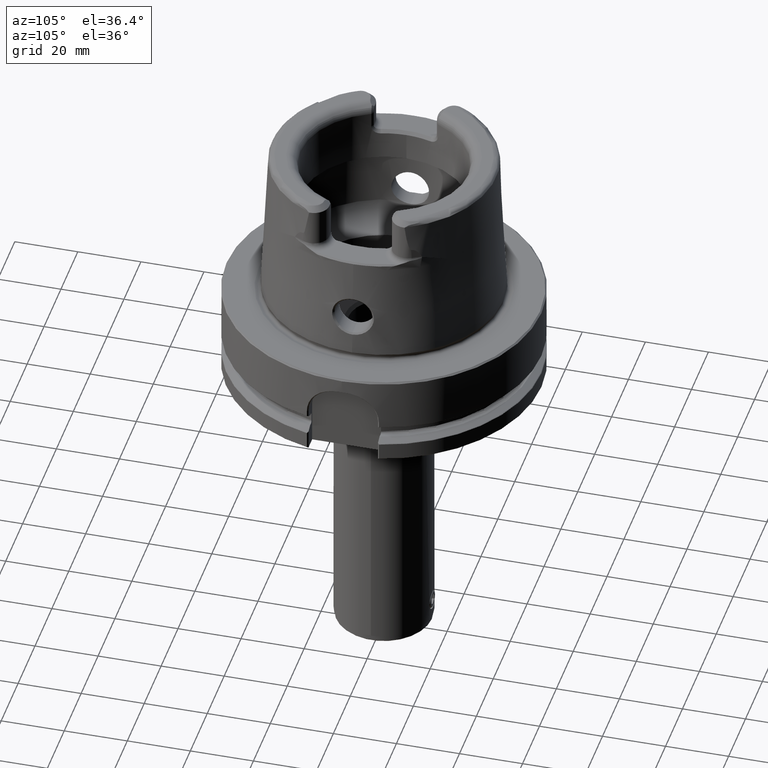
[diagram: clean part render]
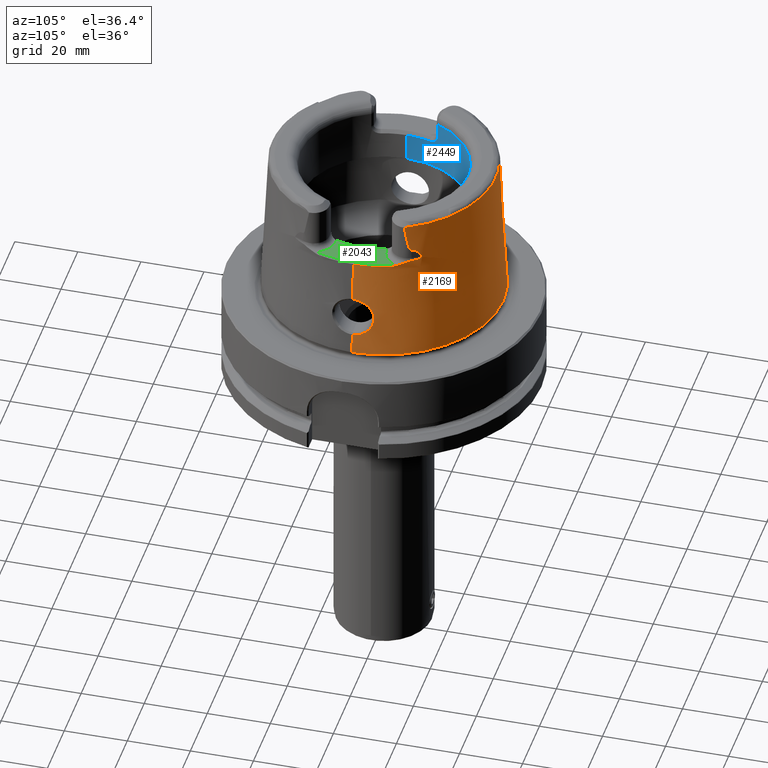
[diagram: same view with three faces highlighted in distinct colors, each labeled with its STEP entity id]
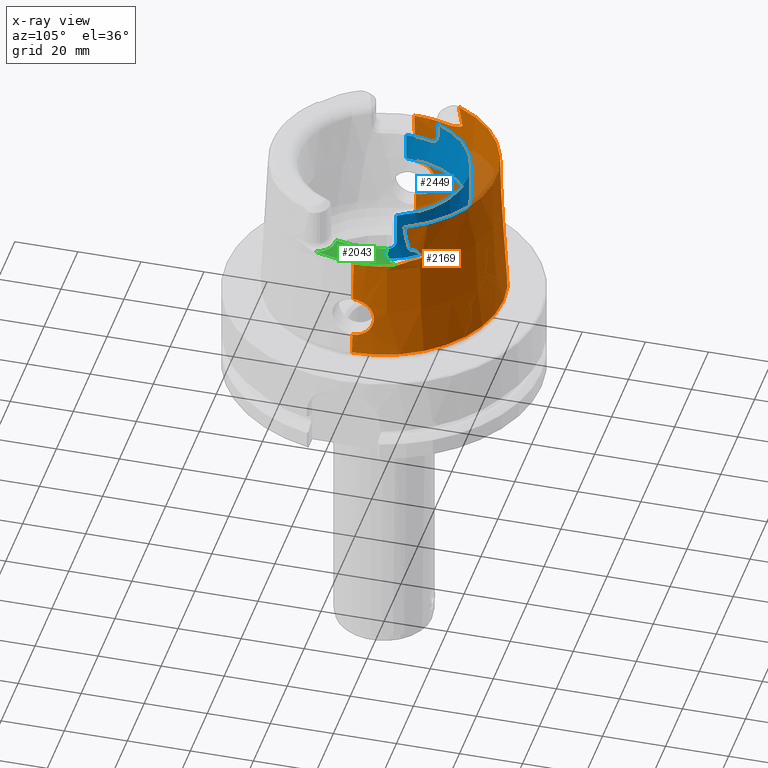
[diagram: x-ray of the same camera — body ghosted, the three highlighted faces saturated]
A machine part, auxiliary view with three faces highlighted in distinct colors.
The next image is the same camera in x-ray (body ghosted, the three faces saturated) — at least one of them is partly hidden behind the body in this view.
Their STEP definitions:

[orange] entity #2169 — the highlighted conical surface has half-angle 2.868 deg.
#1455=EDGE_CURVE('NONE',#2377,#2905,#4310,.T.);
#1507=EDGE_CURVE('NONE',#3167,#2631,#4368,.F.);
#1563=VERTEX_POINT('NONE',#4432);
#1597=EDGE_CURVE('NONE',#1623,#4095,#4467,.T.);
#1603=EDGE_CURVE('NONE',#1563,#3549,#4473,.T.);
#1623=VERTEX_POINT('NONE',#4495);
#1691=EDGE_CURVE('NONE',#2631,#4227,#4571,.F.);
#1701=EDGE_CURVE('NONE',#2927,#3623,#4581,.F.);
#1777=EDGE_CURVE('NONE',#4095,#2659,#4663,.F.);
#1861=VERTEX_POINT('NONE',#4753);
#1877=EDGE_CURVE('NONE',#2927,#1861,#4771,.F.);
#2049=VERTEX_POINT('NONE',#4967);
#2093=EDGE_CURVE('NONE',#3897,#3511,#5012,.T.);
#2169=ADVANCED_FACE('NONE',(#5095),#5096,.T.);
#2377=VERTEX_POINT('NONE',#5329);
#2385=VERTEX_POINT('NONE',#5338);
#2443=VERTEX_POINT('NONE',#5400);
#2485=EDGE_CURVE('NONE',#2551,#2443,#5448,.T.);
#2493=EDGE_CURVE('NONE',#2811,#2615,#5456,.T.);
#2509=EDGE_CURVE('NONE',#3013,#3613,#5474,.T.);
#2551=VERTEX_POINT('NONE',#5521);
#2615=VERTEX_POINT('NONE',#5592);
#2631=VERTEX_POINT('NONE',#5609);
#2659=VERTEX_POINT('NONE',#5640);
#2683=EDGE_CURVE('NONE',#2551,#2615,#5665,.F.);
#2717=EDGE_CURVE('NONE',#3613,#1563,#5702,.T.);
#2811=VERTEX_POINT('NONE',#5804);
#2905=VERTEX_POINT('NONE',#5909);
#2927=VERTEX_POINT('NONE',#5933);
#2947=EDGE_CURVE('NONE',#3461,#3733,#5953,.F.);
#3013=VERTEX_POINT('NONE',#6025);
#3017=EDGE_CURVE('NONE',#2659,#3733,#6029,.T.);
#3089=EDGE_CURVE('NONE',#3623,#2385,#6109,.F.);
#3167=VERTEX_POINT('NONE',#6193);
#3265=EDGE_CURVE('NONE',#2049,#1623,#6303,.T.);
#3345=EDGE_CURVE('NONE',#3549,#2905,#6393,.T.);
#3421=EDGE_CURVE('NONE',#3511,#3461,#6480,.T.);
#3461=VERTEX_POINT('NONE',#6525);
#3511=VERTEX_POINT('NONE',#6579);
#3521=EDGE_CURVE('NONE',#2443,#3013,#6590,.F.);
#3549=VERTEX_POINT('NONE',#6622);
#3613=VERTEX_POINT('',#6689);
#3623=VERTEX_POINT('NONE',#6699);
#3733=VERTEX_POINT('NONE',#6821);
#3771=EDGE_CURVE('NONE',#1861,#4227,#6863,.F.);
#3847=EDGE_CURVE('NONE',#3897,#2377,#6948,.T.);
#3897=VERTEX_POINT('NONE',#7001);
#4049=EDGE_CURVE('NONE',#3167,#2811,#7166,.T.);
#4059=EDGE_CURVE('NONE',#2385,#2049,#7176,.F.);
#4095=VERTEX_POINT('NONE',#7217);
#4227=VERTEX_POINT('NONE',#7359);
#4310=B_SPLINE_CURVE_WITH_KNOTS('',3,(#7473,#7474,#7475,#7476,#7477,#7478,#7479,#7480,#7481,#7482,#7483,#7484),.UNSPECIFIED.,.F.,.F.,(4,2,2,2,2,4),(0.0,0.00130367644890354,0.00260735289780709,0.00391102934671064,0.00456286757116241,0.00521470579561418),.UNSPECIFIED.);
#4368=B_SPLINE_CURVE_WITH_KNOTS('',3,(#7577,#7578,#7579,#7580,#7581,#7582,#7583,#7584,#7585,#7586,#7587,#7588,#7589,#7590,#7591,#7592,#7593,#7594,#7595,#7596,#7597,#7598,#7599,#7600,#7601,#7602,#7603,#7604,#7605,#7606,#7607,#7608,#7609,#7610,#7611,#7612,#7613,#7614,#7615,#7616,#7617,#7618,#7619,#7620,#7621,#7622),.UNSPECIFIED.,.F.,.F.,(4,2,2,2,2,2,2,2,2,2,2,2,2,2,2,2,2,2,2,2,2,2,4),(4.68831406480512,7.03247109720768,8.20454961340896,8.79058887150961,9.37662812961024,9.84126244311741,10.073579599871,10.3058967566246,10.4645881431318,10.5439338363854,10.623279529639,10.7026252228926,10.7819709161462,10.9406623026534,11.172979459407,11.4052966161605,11.8699309296677,12.4559701877683,13.0420094458689,14.2140879620702,16.5582449944728,18.9024020268754,21.2465590592779),.UNSPECIFIED.);
#4432=CARTESIAN_POINT('',(-34.1729956588683,11.434124400822,39.3679251054853));
#4467=B_SPLINE_CURVE_WITH_KNOTS('',3,(#7860,#7861,#7862,#7863,#7864,#7865,#7866,#7867,#7868,#7869,#7870,#7871),.UNSPECIFIED.,.F.,.F.,(4,2,2,2,2,4),(0.0364736504317944,0.0377789495994025,0.0384315991832065,0.0390842487670106,0.0403895479346186,0.0416948471022267),.UNSPECIFIED.);
#4473=CIRCLE('',#7881,36.0351610668595);
#4495=CARTESIAN_POINT('',(36.9285296284127,-2.93039099150789E-011,21.5362886168837));
#4571=(B_SPLINE_CURVE(2,(#8077,#8078,#8079),.UNSPECIFIED.,.F.,.F.)B_SPLINE_CURVE_WITH_KNOTS((3,3),(0.928123031336105,5.84554102192076),.UNSPECIFIED.)RATIONAL_B_SPLINE_CURVE((1.0008762416997,1.00299734066661,1.00299734066661))BOUNDED_CURVE()REPRESENTATION_ITEM('')GEOMETRIC_REPRESENTATION_ITEM()CURVE());
#4581=B_SPLINE_CURVE_WITH_KNOTS('',3,(#8100,#8101,#8102,#8103,#8104,#8105,#8106,#8107,#8108,#8109,#8110,#8111,#8112,#8113,#8114,#8115,#8116,#8117,#8118,#8119,#8120,#8121),.UNSPECIFIED.,.F.,.F.,(4,2,2,2,2,2,2,2,2,2,4),(0.0,1.61176026456514,3.22352052913029,4.83528079369543,5.64116092597801,6.44704105826058,7.25292119054316,8.05880132282573,9.67056158739089,11.282321851956,12.8940821165212),.UNSPECIFIED.);
#4663=B_SPLINE_CURVE_WITH_KNOTS('',3,(#8319,#8320,#8321,#8322,#8323,#8324,#8325,#8326,#8327,#8328,#8329,#8330,#8331,#8332,#8333,#8334,#8335,#8336,#8337,#8338,#8339,#8340,#8341,#8342),.UNSPECIFIED.,.F.,.F.,(4,2,2,2,2,2,2,2,2,2,2,4),(0.0,0.70348713970153,1.2203918603467,2.72131948670699,5.33141677530061,6.47986092555788,8.90886244958417,10.9063376827243,12.4760404518543,13.74744308783,14.3789361965803,15.0225111967034),.UNSPECIFIED.);
#4753=CARTESIAN_POINT('',(31.801730307811,17.3167951831525,35.8623347892126));
#4771=B_SPLINE_CURVE_WITH_KNOTS('',3,(#8585,#8586,#8587,#8588,#8589,#8590,#8591,#8592,#8593,#8594,#8595,#8596),.UNSPECIFIED.,.F.,.F.,(4,2,2,2,2,4),(0.0,1.24570110177709,2.35194312845971,4.18665328588639,5.8946902655285,7.76587929713646),.UNSPECIFIED.);
#4967=CARTESIAN_POINT('',(36.2856620688635,0.0,34.3679251054852));
#5012=LINE('',#9028,#9029);
#5095=FACE_OUTER_BOUND('',#9230,.T.);
#5096=CONICAL_SURFACE('',#9231,35.5024919839679,0.0500583457465974);
#5329=CARTESIAN_POINT('',(-36.7269634990173,4.67837443864863,19.6359673243419));
#5338=CARTESIAN_POINT('',(34.4105516847215,11.513609535192,34.3679251054854));
#5400=CARTESIAN_POINT('',(-32.0309069691676,16.252598941841,41.7));
#5448=B_SPLINE_CURVE_WITH_KNOTS('',3,(#10001,#10002,#10003,#10004,#10005,#10006,#10007,#10008,#10009,#10010,#10011,#10012,#10013,#10014,#10015,#10016),.UNSPECIFIED.,.F.,.F.,(4,2,2,2,2,2,2,4),(0.0,2.34415703240257,4.68831406480513,7.0324710972077,8.20454961340898,8.79058887150962,9.37662812961026,9.84126244311741),.UNSPECIFIED.);
#5456=CIRCLE('',#10025,35.5860815135478);
#5474=B_SPLINE_CURVE_WITH_KNOTS('',3,(#10047,#10048,#10049,#10050,#10051,#10052,#10053,#10054,#10055,#10056,#10057,#10058,#10059,#10060),.UNSPECIFIED.,.F.,.F.,(4,2,2,2,2,2,4),(1.66842546005317,3.33685092010633,5.0052763801595,5.83948911018608,6.67370184021266,7.50791457023925,8.34212730026583),.UNSPECIFIED.);
#5521=CARTESIAN_POINT('',(-32.2196727564462,15.1179594647321,48.25));
#5592=CARTESIAN_POINT('',(-32.125186888805,15.3082188659629,48.3315529895861));
#5609=CARTESIAN_POINT('',(31.6308064128983,17.2237230750798,39.746973103506));
#5640=CARTESIAN_POINT('',(37.5801911872421,2.65153614143268E-008,8.52912390264792));
#5665=B_SPLINE_CURVE_WITH_KNOTS('',3,(#10543,#10544,#10545,#10546,#10547,#10548,#10549,#10550,#10551,#10552,#10553,#10554,#10555,#10556,#10557,#10558,#10559,#10560,#10561,#10562,#10563,#10564),.UNSPECIFIED.,.F.,.F.,(4,2,2,2,2,2,2,2,2,2,4),(0.0,1.58306505567606,3.16613011135212,4.74919516702817,5.5407276948662,6.33226022270423,7.12379275054226,7.91532527838029,9.49839033405634,11.0814553897324,12.6645204454084),.UNSPECIFIED.);
#5702=B_SPLINE_CURVE_WITH_KNOTS('',3,(#10717,#10718,#10719,#10720,#10721,#10722,#10723,#10724,#10725,#10726,#10727,#10728,#10729,#10730),.UNSPECIFIED.,.F.,.F.,(4,2,2,2,2,2,4),(1.66842546005317,3.33685092010633,5.0052763801595,5.83948911018608,6.67370184021266,7.50791457023925,8.34212730026583),.UNSPECIFIED.);
#5804=CARTESIAN_POINT('',(32.1251868888049,15.3082188659629,48.3315529895861));
#5909=CARTESIAN_POINT('',(-36.9285242983376,2.27392948830914E-011,21.5363950051821));
#5933=CARTESIAN_POINT('',(33.5871537530909,13.6679057063271,34.846852915629));
#5953=CIRCLE('',#11178,37.9111386679071);
#6025=CARTESIAN_POINT('',(-33.2160543196187,13.8919915979233,39.988325798194));
#6029=LINE('',#11385,#11386);
#6109=B_SPLINE_CURVE_WITH_KNOTS('',3,(#11789,#11790,#11791,#11792,#11793,#11794,#11795,#11796,#11797,#11798,#11799,#11800,#11801,#11802),.UNSPECIFIED.,.F.,.F.,(4,2,2,2,2,2,4),(4.81497230156076,5.61746768515422,6.41996306874768,7.22245845234115,8.02495383593462,9.62994460312155,11.2349353703085),.UNSPECIFIED.);
#6193=CARTESIAN_POINT('',(32.2196727564462,15.117959464732,48.25));
#6303=LINE('',#12353,#12354);
#6393=LINE('',#12547,#12548);
#6480=CIRCLE('',#12722,37.9111386679071);
#6525=CARTESIAN_POINT('',(0.0,37.9111386679071,1.92341218857392));
#6579=CARTESIAN_POINT('',(-37.9111386679071,-4.64277546216839E-015,1.92341218857392));
#6590=B_SPLINE_CURVE_WITH_KNOTS('',3,(#13036,#13037,#13038,#13039,#13040,#13041,#13042,#13043,#13044,#13045,#13046,#13047,#13048,#13049,#13050,#13051,#13052,#13053,#13054,#13055),.UNSPECIFIED.,.F.,.F.,(4,2,2,2,2,2,2,2,2,4),(0.0,1.56358230813003,4.20170577852279,5.43887393429886,5.99561806022287,6.32890723212831,6.63950427902106,7.1552611935719,8.20142366647076,9.5713254009204),.UNSPECIFIED.);
#6622=CARTESIAN_POINT('',(-36.0351610668595,-4.41303446572888E-015,39.3679251054852));
#6689=CARTESIAN_POINT('',(-33.3655922804173,13.5498880853482,39.830754487126));
#6699=CARTESIAN_POINT('',(33.6037090192422,13.629373219723,34.8301937741542));
#6821=CARTESIAN_POINT('',(37.9111386679071,0.0,1.92341218857392));
#6863=B_SPLINE_CURVE_WITH_KNOTS('',3,(#13713,#13714,#13715,#13716,#13717,#13718,#13719,#13720,#13721,#13722,#13723,#13724,#13725,#13726,#13727,#13728,#13729,#13730,#13731,#13732,#13733,#13734,#13735,#13736,#13737,#13738,#13739,#13740,#13741,#13742,#13743,#13744,#13745,#13746,#13747,#13748,#13749,#13750,#13751,#13752,#13753,#13754),.UNSPECIFIED.,.F.,.F.,(4,2,2,2,2,2,2,2,2,2,2,2,2,2,2,2,2,2,2,2,4),(0.646171932445701,1.2923438648914,2.58468772978281,4.1318393673182,4.90541518608589,5.29220309546974,5.48559705016166,5.67899100485359,5.85190485448709,5.93836177930385,6.0248187041206,6.11109233214621,6.19736596017181,6.36991321622302,6.56351564378317,6.75711807134333,7.14432292646363,7.91873263670423,9.46755205718545,10.7598437994013,11.4059896705092),.UNSPECIFIED.);
#6948=B_SPLINE_CURVE_WITH_KNOTS('',3,(#13937,#13938,#13939,#13940,#13941,#13942,#13943,#13944,#13945,#13946,#13947,#13948,#13949,#13950,#13951,#13952,#13953,#13954,#13955,#13956,#13957,#13958,#13959,#13960,#13961,#13962,#13963,#13964,#13965,#13966),.UNSPECIFIED.,.F.,.F.,(4,2,2,2,2,2,2,2,2,2,2,2,2,2,4),(0.026055922877507,0.0270310359766365,0.028006149075766,0.0289812621748955,0.0299563752740251,0.0309314883731546,0.0319066014722841,0.0338568276705431,0.0358070538688021,0.0367821669679316,0.0377572800670611,0.0387323931661906,0.0397075062653201,0.0406826193644496,0.0416577324635791),.UNSPECIFIED.);
#7001=CARTESIAN_POINT('',(-37.5801869682553,-3.07468724688575E-014,8.52920811362393));
#7166=B_SPLINE_CURVE_WITH_KNOTS('',3,(#14562,#14563,#14564,#14565,#14566,#14567,#14568,#14569,#14570,#14571,#14572,#14573,#14574,#14575,#14576,#14577,#14578,#14579,#14580,#14581,#14582,#14583),.UNSPECIFIED.,.F.,.F.,(4,2,2,2,2,2,2,2,2,2,4),(0.0,1.58306505567605,3.16613011135211,4.74919516702816,5.54072769486619,6.33226022270421,7.12379275054224,7.91532527838027,9.49839033405633,11.0814553897324,12.6645204454084),.UNSPECIFIED.);
#7176=CIRCLE('',#14650,36.2856620688635);
#7217=CARTESIAN_POINT('',(36.726978185701,4.67829094045248,19.6358871230757));
#7359=CARTESIAN_POINT('',(30.0433310036611,20.1390699565836,36.7));
#7473=CARTESIAN_POINT('',(-36.7269634990173,4.67837443864863,19.6359673243419));
#7474=CARTESIAN_POINT('',(-36.7512220466804,4.3676712516237,19.9392958517));
#7475=CARTESIAN_POINT('',(-36.7768753571685,4.02707147567294,20.2106251237375));
#7476=CARTESIAN_POINT('',(-36.8249983555904,3.30756659276842,20.6789171118339));
#7477=CARTESIAN_POINT('',(-36.8476510111816,2.92678307273668,20.8780000701567));
#7478=CARTESIAN_POINT('',(-36.886358886003,2.12201273582685,21.2045244164565));
#7479=CARTESIAN_POINT('',(-36.9018342423419,1.70952248824853,21.3272292123065));
#7480=CARTESIAN_POINT('',(-36.9176608712769,1.07709762750202,21.4516886342072));
#7481=CARTESIAN_POINT('',(-36.9217132878815,0.863927884594681,21.4831889116177));
#7482=CARTESIAN_POINT('',(-36.9271607247324,0.432709848785619,21.5255751186713));
#7483=CARTESIAN_POINT('',(-36.9285306546734,0.215291068799325,21.5362681327161));
#7484=CARTESIAN_POINT('',(-36.9285242983376,2.27392948830914E-011,21.5363950051821));
#7577=CARTESIAN_POINT('',(30.484183547803,18.6262985230309,45.5730380835258));
#7578=CARTESIAN_POINT('',(30.5858833029696,18.5408518821765,44.7301033574889));
#7579=CARTESIAN_POINT('',(30.6937386397034,18.4436915553674,43.8920910426571));
#7580=CARTESIAN_POINT('',(30.8715396941237,18.2641682417449,42.6733806215704));
#7581=CARTESIAN_POINT('',(30.9334647048801,18.1986977120436,42.2736933994119));
#7582=CARTESIAN_POINT('',(31.0336400383194,18.0854460207436,41.6883988868358));
#7583=CARTESIAN_POINT('',(31.0682623901353,18.0451549083996,41.4957032374412));
#7584=CARTESIAN_POINT('',(31.1413425044177,17.956833698936,41.1162134868478));
#7585=CARTESIAN_POINT('',(31.1797290017497,17.9089399906676,40.9293739360529));
#7586=CARTESIAN_POINT('',(31.2547457244044,17.8108339831739,40.6016470379575));
#7587=CARTESIAN_POINT('',(31.2934534095921,17.7587819841079,40.4444132248574));
#7588=CARTESIAN_POINT('',(31.359125749376,17.6653637377046,40.2198969165075));
#7589=CARTESIAN_POINT('',(31.3822772719369,17.6316742270716,40.1470089919297));
#7590=CARTESIAN_POINT('',(31.4316662645932,17.5574977442445,40.0105839022188));
#7591=CARTESIAN_POINT('',(31.4578185301174,17.5171822708969,39.9469227398249));
#7592=CARTESIAN_POINT('',(31.506272860764,17.4394294826637,39.8542178215957));
#7593=CARTESIAN_POINT('',(31.5294133270813,17.4014703377673,39.816769811567));
#7594=CARTESIAN_POINT('',(31.5665818255071,17.3381107938378,39.7763394048966));
#7595=CARTESIAN_POINT('',(31.5793966331184,17.3158958570512,39.7654544515663));
#7596=CARTESIAN_POINT('',(31.6051838693672,17.2703190868303,39.7507603581987));
#7597=CARTESIAN_POINT('',(31.6181581290695,17.246951236349,39.746973103506));
#7598=CARTESIAN_POINT('',(31.6434546967271,17.2004949138105,39.746973103506));
#7599=CARTESIAN_POINT('',(31.6560434406159,17.1769171408401,39.7507603581986));
#7600=CARTESIAN_POINT('',(31.6803349558617,17.130525915116,39.7654544515663));
#7601=CARTESIAN_POINT('',(31.6920417879065,17.1077076593978,39.7763394048966));
#7602=CARTESIAN_POINT('',(31.7250950313395,17.0421072616799,39.816769811567));
#7603=CARTESIAN_POINT('',(31.7444240027321,17.002072667545,39.8542178215957));
#7604=CARTESIAN_POINT('',(31.7834435969753,16.9191824419359,39.9469227398249));
#7605=CARTESIAN_POINT('',(31.8031176270882,16.8753394160091,40.0105839022189));
#7606=CARTESIAN_POINT('',(31.8386260189882,16.7936046173926,40.1470089919297));
#7607=CARTESIAN_POINT('',(31.8543625567311,16.7558774719473,40.2198969165075));
#7608=CARTESIAN_POINT('',(31.8971983000735,16.6500241580358,40.4444132248574));
#7609=CARTESIAN_POINT('',(31.9199181859509,16.5892664236716,40.6016470379575));
#7610=CARTESIAN_POINT('',(31.9616212518765,16.4730203412576,40.9293739360529));
#7611=CARTESIAN_POINT('',(31.9810225092506,16.4147887202822,41.1162134868478));
#7612=CARTESIAN_POINT('',(32.0155572968355,16.3054786677201,41.4957032374412));
#7613=CARTESIAN_POINT('',(32.0306149312746,16.2545341034931,41.6883988868358));
#7614=CARTESIAN_POINT('',(32.0713889125366,16.1089369693728,42.2736933994119));
#7615=CARTESIAN_POINT('',(32.0927822846967,16.0213960027106,42.6733806215704));
#7616=CARTESIAN_POINT('',(32.1471032210817,15.7746348409423,43.8920910426571));
#7617=CARTESIAN_POINT('',(32.1701934482504,15.631317904829,44.7301033574889));
#7618=CARTESIAN_POINT('',(32.2033753603093,15.3677371102914,46.4159728095627));
#7619=CARTESIAN_POINT('',(32.2130696003954,15.2482895070886,47.2631124542077));
#7620=CARTESIAN_POINT('',(32.2242624330982,15.0288203689247,48.9238254194878));
#7621=CARTESIAN_POINT('',(32.2256907240325,14.9289256081434,49.7374159643922));
#7622=CARTESIAN_POINT('',(32.2247236023161,14.8380619118634,50.5135));
#7860=CARTESIAN_POINT('',(36.9285296284127,-2.93039099150789E-011,21.5362886168837));
#7861=CARTESIAN_POINT('',(36.9285425020464,0.430063205873579,21.5360316591605));
#7862=CARTESIAN_POINT('',(36.9231176679576,0.857224646722309,21.4943838881395));
#7863=CARTESIAN_POINT('',(36.9072728352333,1.49361213128338,21.3697397970834));
#7864=CARTESIAN_POINT('',(36.9006731901123,1.70568032382925,21.3174551843908));
#7865=CARTESIAN_POINT('',(36.8854071199741,2.11953369085314,21.1940905275638));
#7866=CARTESIAN_POINT('',(36.8767234028423,2.32235154020814,21.1228792640139));
#7867=CARTESIAN_POINT('',(36.8480728868003,2.91875420315936,20.8812423622653));
#7868=CARTESIAN_POINT('',(36.8254251835959,3.3012057843833,20.6826235870322));
#7869=CARTESIAN_POINT('',(36.7767450150571,4.02932979439153,20.2091476020875));
#7870=CARTESIAN_POINT('',(36.7512691314624,4.36716785964648,19.9396189831306));
#7871=CARTESIAN_POINT('',(36.726978185701,4.67829094045248,19.6358871230757));
#7881=AXIS2_PLACEMENT_3D('',#15551,#15552,#15553);
#8077=CARTESIAN_POINT('',(30.043331003659,20.1390699565874,36.6999999999922));
#8078=CARTESIAN_POINT('',(30.8387472732728,18.6783138858964,39.7469731035059));
#8079=CARTESIAN_POINT('',(31.6308064128983,17.2237230750798,39.7469731035059));
#8100=CARTESIAN_POINT('',(35.6993842536388,5.67900435598728,37.1103529156256));
#8101=CARTESIAN_POINT('',(35.6490232800363,6.10057201453599,36.7811330490617));
#8102=CARTESIAN_POINT('',(35.5869598825287,6.54950432459417,36.4460747795354));
#8103=CARTESIAN_POINT('',(35.4351029789142,7.48313118015104,35.8075168715406));
#8104=CARTESIAN_POINT('',(35.3453314628906,7.96781109115637,35.503990607217));
#8105=CARTESIAN_POINT('',(35.1343733402736,8.9588836814415,34.9787694345527));
#8106=CARTESIAN_POINT('',(35.0129931871906,9.46597090098556,34.7573150559366));
#8107=CARTESIAN_POINT('',(34.8055802545123,10.2327954765565,34.527700272967));
#8108=CARTESIAN_POINT('',(34.7322198820795,10.4894859001016,34.4682263579193));
#8109=CARTESIAN_POINT('',(34.5773266802121,11.0025179935047,34.3883178528679));
#8110=CARTESIAN_POINT('',(34.4957881908807,11.2588644709573,34.3679251054854));
#8111=CARTESIAN_POINT('',(34.3253151785623,11.7683545994268,34.3679251054854));
#8112=CARTESIAN_POINT('',(34.2361615503149,12.0221530870406,34.3883178528679));
#8113=CARTESIAN_POINT('',(34.051114340422,12.5250957904942,34.4682263579193));
#8114=CARTESIAN_POINT('',(33.9552223856884,12.7742472520605,34.5277002729669));
#8115=CARTESIAN_POINT('',(33.6593831692676,13.5114848069702,34.7573150559366));
#8116=CARTESIAN_POINT('',(33.4511489629647,13.9895110668271,34.9787694345527));
#8117=CARTESIAN_POINT('',(33.0231852369517,14.9079745979102,35.5039906072169));
#8118=CARTESIAN_POINT('',(32.8031923055759,15.3490830328398,35.8075168715406));
#8119=CARTESIAN_POINT('',(32.3625999535559,16.1861003587858,36.4460747795354));
#8120=CARTESIAN_POINT('',(32.1419917781083,16.5819843282138,36.7811330490617));
#8121=CARTESIAN_POINT('',(31.9285060897582,16.9489712207129,37.1103529156256));
#8319=CARTESIAN_POINT('',(37.5696559059581,-0.785637756918436,8.57546599685347));
#8320=CARTESIAN_POINT('',(37.5759053568233,-0.552852262204486,8.54789613396454));
#8321=CARTESIAN_POINT('',(37.5793976020055,-0.318776544666696,8.53257907847467));
#8322=CARTESIAN_POINT('',(37.5805650111028,0.0880018131795194,8.52748910990421));
#8323=CARTESIAN_POINT('',(37.5795399516978,0.259854825678904,8.53202768115384));
#8324=CARTESIAN_POINT('',(37.5696425195816,0.930403008199478,8.57584067617755));
#8325=CARTESIAN_POINT('',(37.5494894395885,1.42352141583088,8.66452475856341));
#8326=CARTESIAN_POINT('',(37.4636104994808,2.73332218351564,9.05299610182118));
#8327=CARTESIAN_POINT('',(37.3752390827894,3.51157562889513,9.45798561213437));
#8328=CARTESIAN_POINT('',(37.2271788808001,4.48243255528658,10.2321708223312));
#8329=CARTESIAN_POINT('',(37.1785806885839,4.76315666958798,10.4977775612612));
#8330=CARTESIAN_POINT('',(37.0254193890572,5.5566420981759,11.4061838772605));
#8331=CARTESIAN_POINT('',(36.9205608950861,5.97527778496817,12.1282506695908));
#8332=CARTESIAN_POINT('',(36.7640643809813,6.47533794699957,13.5382750712536));
#8333=CARTESIAN_POINT('',(36.6874840529498,6.66313185129162,14.3687145366712));
#8334=CARTESIAN_POINT('',(36.6150491497235,6.57479366544266,16.1046819707824));
#8335=CARTESIAN_POINT('',(36.6098588322081,6.39350846202362,16.8616858112381));
#8336=CARTESIAN_POINT('',(36.6361850264755,5.84637158854749,18.1350342763741));
#8337=CARTESIAN_POINT('',(36.6607058339963,5.52167879419298,18.6707667316159));
#8338=CARTESIAN_POINT('',(36.7071070847774,4.93085207303544,19.3854735408626));
#8339=CARTESIAN_POINT('',(36.7238576585923,4.72068783221107,19.6042522443278));
#8340=CARTESIAN_POINT('',(36.7590870576749,4.26148634828717,20.0188950303013));
#8341=CARTESIAN_POINT('',(36.7773142055523,4.01492033070533,20.2114064733774));
#8342=CARTESIAN_POINT('',(36.7949657856373,3.75591430978842,20.3858871230757));
#8585=CARTESIAN_POINT('',(30.9522661967315,18.8322059505749,35.4563899925386));
#8586=CARTESIAN_POINT('',(31.1507307711606,18.4930741640361,35.590630337306));
#8587=CARTESIAN_POINT('',(31.3356570350833,18.1642522163396,35.7203094192833));
#8588=CARTESIAN_POINT('',(31.6607731135973,17.5761923771665,35.8607449830975));
#8589=CARTESIAN_POINT('',(31.7946017050021,17.3307486390033,35.8790448895677));
#8590=CARTESIAN_POINT('',(32.1757708275376,16.6264964812363,35.7935451184259));
#8591=CARTESIAN_POINT('',(32.4168416347814,16.1763754700958,35.6064399026316));
#8592=CARTESIAN_POINT('',(32.9461710001948,15.1158855400476,35.2033006926132));
#8593=CARTESIAN_POINT('',(33.2390870008186,14.4962944168518,34.9788505335598));
#8594=CARTESIAN_POINT('',(33.8420509723049,13.0631817644191,34.7472489793091));
#8595=CARTESIAN_POINT('',(34.035562863814,12.5211476425875,34.8074384169454));
#8596=CARTESIAN_POINT('',(34.1604261724907,12.1587327556531,34.8851221703321));
#9028=CARTESIAN_POINT('',(-35.5024919839679,-4.34780131699209E-015,50.0));
#9029=VECTOR('',#16140,1000.0);
#9230=EDGE_LOOP('',(#16227,#16228,#16229,#16230,#16231,#16232,#16233,#16234,#16235,#16236,#16237,#16238,#16239,#16240,#16241,#16242,#16243,#16244,#16245,#16246,#16247,#16248,#16249,#16250,#16251));
#9231=AXIS2_PLACEMENT_3D('',#16252,#16253,#16254);
#10001=CARTESIAN_POINT('',(-32.2247236023161,14.8380619118634,50.5135));
#10002=CARTESIAN_POINT('',(-32.2256907240325,14.9289256081434,49.7374159643922));
#10003=CARTESIAN_POINT('',(-32.2242624330982,15.0288203689247,48.9238254194878));
#10004=CARTESIAN_POINT('',(-32.2130696003953,15.2482895070886,47.2631124542077));
#10005=CARTESIAN_POINT('',(-32.2033753603093,15.3677371102914,46.4159728095627));
#10006=CARTESIAN_POINT('',(-32.1701934482504,15.631317904829,44.7301033574889));
#10007=CARTESIAN_POINT('',(-32.1471032210817,15.7746348409423,43.8920910426571));
#10008=CARTESIAN_POINT('',(-32.0927822846967,16.0213960027106,42.6733806215704));
#10009=CARTESIAN_POINT('',(-32.0713889125366,16.1089369693729,42.2736933994119));
#10010=CARTESIAN_POINT('',(-32.0306149312746,16.2545341034932,41.6883988868358));
#10011=CARTESIAN_POINT('',(-32.0155572968355,16.3054786677201,41.4957032374412));
#10012=CARTESIAN_POINT('',(-31.9810225092507,16.4147887202822,41.1162134868478));
#10013=CARTESIAN_POINT('',(-31.9616212518765,16.4730203412576,40.9293739360529));
#10014=CARTESIAN_POINT('',(-31.9199181859509,16.5892664236716,40.6016470379575));
#10015=CARTESIAN_POINT('',(-31.8971983000735,16.6500241580358,40.4444132248574));
#10016=CARTESIAN_POINT('',(-31.8686411378272,16.7205930340078,40.2947356859755));
#10025=AXIS2_PLACEMENT_3D('',#16701,#16702,#16703);
#10047=CARTESIAN_POINT('',(-32.2784021736174,15.8097447069369,41.2230021294701));
#10048=CARTESIAN_POINT('',(-32.5073236092114,15.3804658351457,40.8884518929488));
#10049=CARTESIAN_POINT('',(-32.7356744031813,14.9279621567224,40.569699883608));
#10050=CARTESIAN_POINT('',(-33.1794902350043,13.9851641620033,40.0164818746948));
#10051=CARTESIAN_POINT('',(-33.3952110990647,13.4942443689365,39.7822388637388));
#10052=CARTESIAN_POINT('',(-33.7015866696454,12.7355677844072,39.5384284118318));
#10053=CARTESIAN_POINT('',(-33.8008764285146,12.4789101729718,39.4750758324253));
#10054=CARTESIAN_POINT('',(-33.9924651882287,11.9600434666393,39.3897994958596));
#10055=CARTESIAN_POINT('',(-34.0847624643117,11.6978256226081,39.3679251054853));
#10056=CARTESIAN_POINT('',(-34.2612288534249,11.1704231790359,39.3679251054853));
#10057=CARTESIAN_POINT('',(-34.3453236091408,10.9054608100819,39.3897994958596));
#10058=CARTESIAN_POINT('',(-34.5045758011916,10.3757744395605,39.4750758324252));
#10059=CARTESIAN_POINT('',(-34.5797398803428,10.1110444886116,39.5384284118318));
#10060=CARTESIAN_POINT('',(-34.6503733990783,9.84761532789536,39.6196985624674));
#10543=CARTESIAN_POINT('',(-28.1276153020766,21.9905003724354,45.9865));
#10544=CARTESIAN_POINT('',(-28.3761656471275,21.6470289457814,46.3006736808993));
#10545=CARTESIAN_POINT('',(-28.634350198565,21.2782326926165,46.6223357399298));
#10546=CARTESIAN_POINT('',(-29.1563536353547,20.5032153611787,47.2421360481048));
#10547=CARTESIAN_POINT('',(-29.4201257437401,20.097097507764,47.5404427522905));
#10548=CARTESIAN_POINT('',(-29.9457176166201,19.2566733587474,48.0649526217705));
#10549=CARTESIAN_POINT('',(-30.207767898572,18.8220781553012,48.291019016915));
#10550=CARTESIAN_POINT('',(-30.5971993678541,18.1532856244205,48.5293915229892));
#10551=CARTESIAN_POINT('',(-30.726459954548,17.9274637262133,48.5919670123731));
#10552=CARTESIAN_POINT('',(-30.9832387270621,17.4713122537169,48.6765473988469));
#10553=CARTESIAN_POINT('',(-31.1107648324425,17.240972230824,48.6984718827265));
#10554=CARTESIAN_POINT('',(-31.3631169806518,16.7775357303014,48.6984718827265));
#10555=CARTESIAN_POINT('',(-31.4874028254348,16.5454313087874,48.6765473988469));
#10556=CARTESIAN_POINT('',(-31.7312337298668,16.0822294155288,48.5919670123731));
#10557=CARTESIAN_POINT('',(-31.8507832689869,15.8511196219706,48.5293915229892));
#10558=CARTESIAN_POINT('',(-32.201251402634,15.161110632227,48.291019016915));
#10559=CARTESIAN_POINT('',(-32.4241149747544,14.7051773373786,48.0649526217705));
#10560=CARTESIAN_POINT('',(-32.844869659882,13.8076668571997,47.5404427522905));
#10561=CARTESIAN_POINT('',(-33.042878371019,13.3657392767772,47.2421360481048));
#10562=CARTESIAN_POINT('',(-33.4106393354955,12.5067332668701,46.6223357399298));
#10563=CARTESIAN_POINT('',(-33.5803302628998,12.0897501399859,46.3006736808993));
#10564=CARTESIAN_POINT('',(-33.7339762751437,11.6946010568866,45.9865));
#10717=CARTESIAN_POINT('',(-32.2784021736174,15.8097447069369,41.2230021294701));
#10718=CARTESIAN_POINT('',(-32.5073236092114,15.3804658351457,40.8884518929488));
#10719=CARTESIAN_POINT('',(-32.7356744031813,14.9279621567224,40.569699883608));
#10720=CARTESIAN_POINT('',(-33.1794902350043,13.9851641620033,40.0164818746948));
#10721=CARTESIAN_POINT('',(-33.3952110990647,13.4942443689365,39.7822388637388));
#10722=CARTESIAN_POINT('',(-33.7015866696454,12.7355677844072,39.5384284118318));
#10723=CARTESIAN_POINT('',(-33.8008764285146,12.4789101729718,39.4750758324253));
#10724=CARTESIAN_POINT('',(-33.9924651882287,11.9600434666393,39.3897994958596));
#10725=CARTESIAN_POINT('',(-34.0847624643117,11.6978256226081,39.3679251054853));
#10726=CARTESIAN_POINT('',(-34.2612288534249,11.1704231790359,39.3679251054853));
#10727=CARTESIAN_POINT('',(-34.3453236091408,10.9054608100819,39.3897994958596));
#10728=CARTESIAN_POINT('',(-34.5045758011916,10.3757744395605,39.4750758324252));
#10729=CARTESIAN_POINT('',(-34.5797398803428,10.1110444886116,39.5384284118318));
#10730=CARTESIAN_POINT('',(-34.6503733990783,9.84761532789536,39.6196985624674));
#11178=AXIS2_PLACEMENT_3D('',#17205,#17206,#17207);
#11385=CARTESIAN_POINT('',(35.5024919839679,0.0,50.0));
#11386=VECTOR('',#17279,1000.0);
#11789=CARTESIAN_POINT('',(34.8730903857027,9.98320167712579,34.6024407999072));
#11790=CARTESIAN_POINT('',(34.8041465464232,10.2378670575039,34.5264551047523));
#11791=CARTESIAN_POINT('',(34.7310139103232,10.4935893493435,34.4674324760274));
#11792=CARTESIAN_POINT('',(34.5766585086202,11.0046206866702,34.3881469732236));
#11793=CARTESIAN_POINT('',(34.4954301920408,11.2599344167069,34.3679251054854));
#11794=CARTESIAN_POINT('',(34.3256731774023,11.7672846536772,34.3679251054854));
#11795=CARTESIAN_POINT('',(34.2368933570909,12.0200716859099,34.3881469732236));
#11796=CARTESIAN_POINT('',(34.0526207259539,12.5210928582955,34.4674324760274));
#11797=CARTESIAN_POINT('',(33.9571295291027,12.769334080357,34.5264551047523));
#11798=CARTESIAN_POINT('',(33.6625281684807,13.5039628429025,34.7544121902169));
#11799=CARTESIAN_POINT('',(33.4551672369239,13.9804079938417,34.9743658943531));
#11800=CARTESIAN_POINT('',(33.029039135685,14.8958797834343,35.4962905409484));
#11801=CARTESIAN_POINT('',(32.810007981217,15.3355818273321,35.7980191797132));
#11802=CARTESIAN_POINT('',(32.5906995491911,15.7527574515484,36.1154928359784));
#12353=CARTESIAN_POINT('',(35.5024919839679,0.0,50.0));
#12354=VECTOR('',#17583,1000.0);
#12547=CARTESIAN_POINT('',(-35.5024919839679,-4.34780131699209E-015,50.0));
#12548=VECTOR('',#17685,1000.0);
#12722=AXIS2_PLACEMENT_3D('',#17813,#17814,#17815);
#13036=CARTESIAN_POINT('',(-33.8163611038049,12.3855902577243,39.8066697986275));
#13037=CARTESIAN_POINT('',(-33.6387389299733,12.8747397250799,39.7779216743614));
#13038=CARTESIAN_POINT('',(-33.4434583235215,13.3644696149706,39.8434471195608));
#13039=CARTESIAN_POINT('',(-32.9037457176885,14.616961290599,40.1864887439694));
#13040=CARTESIAN_POINT('',(-32.5699158758593,15.2845728862141,40.5644566383324));
#13041=CARTESIAN_POINT('',(-32.2630953142663,15.8686726574238,40.9913264346041));
#13042=CARTESIAN_POINT('',(-32.1670742288196,16.0444657272099,41.1433547058504));
#13043=CARTESIAN_POINT('',(-32.0764441536453,16.2003677998839,41.3607966464101));
#13044=CARTESIAN_POINT('',(-32.0571553196739,16.2315130825975,41.4230862161141));
#13045=CARTESIAN_POINT('',(-32.0378380941822,16.2591834166861,41.51720047627));
#13046=CARTESIAN_POINT('',(-32.0327343411844,16.265225888553,41.5534015956938));
#13047=CARTESIAN_POINT('',(-32.0280225289919,16.266514035896,41.625614418547));
#13048=CARTESIAN_POINT('',(-32.028170837818,16.2624395142576,41.6598174639484));
#13049=CARTESIAN_POINT('',(-32.034244534993,16.2405035058182,41.7498458436838));
#13050=CARTESIAN_POINT('',(-32.043788179383,16.2158298682398,41.8026644278233));
#13051=CARTESIAN_POINT('',(-32.0802266053177,16.1274026576213,41.9489985118875));
#13052=CARTESIAN_POINT('',(-32.1262066117749,16.0229776891345,42.0746836303625));
#13053=CARTESIAN_POINT('',(-32.3384799893893,15.545400737566,42.4719802952169));
#13054=CARTESIAN_POINT('',(-32.5153428324175,15.1455069491124,42.7356515760476));
#13055=CARTESIAN_POINT('',(-32.7026638048829,14.7009654732895,42.9635));
#13713=CARTESIAN_POINT('',(32.6780411620577,15.4434392448873,37.2050388546012));
#13714=CARTESIAN_POINT('',(32.5796977709215,15.6468866846513,37.2446574467312));
#13715=CARTESIAN_POINT('',(32.47684531405,15.8559252588423,37.2749505561433));
#13716=CARTESIAN_POINT('',(32.1614098975191,16.4836635704525,37.3447954557428));
#13717=CARTESIAN_POINT('',(31.9417093489579,16.9025113360815,37.3630188052823));
#13718=CARTESIAN_POINT('',(31.4890729981656,17.7337632509515,37.3630188052823));
#13719=CARTESIAN_POINT('',(31.2107709221444,18.2225242460925,37.3375118942149));
#13720=CARTESIAN_POINT('',(30.791496238013,18.9261233442514,37.2366111707794));
#13721=CARTESIAN_POINT('',(30.6522461012457,19.1547152762292,37.1930254803232));
#13722=CARTESIAN_POINT('',(30.4501622012529,19.481527723951,37.102409616701));
#13723=CARTESIAN_POINT('',(30.3840782840923,19.5875640039865,37.0680829799623));
#13724=CARTESIAN_POINT('',(30.2878541129286,19.7414840987132,37.0055820844282));
#13725=CARTESIAN_POINT('',(30.2562874259621,19.7918987394306,36.9829031854153));
#13726=CARTESIAN_POINT('',(30.1945758115062,19.8905860368179,36.9316624796273));
#13727=CARTESIAN_POINT('',(30.1643834274145,19.9389138816793,36.903264273502));
#13728=CARTESIAN_POINT('',(30.1098330001343,20.0270229547626,36.8386880595931));
#13729=CARTESIAN_POINT('',(30.0832907725013,20.0702430666492,36.8010917110872));
#13730=CARTESIAN_POINT('',(30.0536644463142,20.1205010422496,36.7350284521227));
#13731=CARTESIAN_POINT('',(30.045499279652,20.1348095329733,36.7114321772682));
#13732=CARTESIAN_POINT('',(30.0345724405794,20.1556428453079,36.6609663355469));
#13733=CARTESIAN_POINT('',(30.0317848813075,20.162205944472,36.6341181882835));
#13734=CARTESIAN_POINT('',(30.0341768204483,20.1638118020577,36.5766134614032));
#13735=CARTESIAN_POINT('',(30.0391830786185,20.1587644674313,36.5498301872656));
#13736=CARTESIAN_POINT('',(30.0543010693395,20.140743959982,36.4995475388616));
#13737=CARTESIAN_POINT('',(30.0644348017601,20.1277346026712,36.4760677578546));
#13738=CARTESIAN_POINT('',(30.0995949385698,20.0810710386563,36.4104325987906));
#13739=CARTESIAN_POINT('',(30.1293225600369,20.0398298043217,36.3732148044097));
#13740=CARTESIAN_POINT('',(30.1894416456796,19.9549668288204,36.3093387706642));
#13741=CARTESIAN_POINT('',(30.2221265890699,19.9079900444629,36.2813406556363));
#13742=CARTESIAN_POINT('',(30.2883317856138,19.8117331202281,36.2309296556978));
#13743=CARTESIAN_POINT('',(30.3218860107476,19.7623880001275,36.2086856305719));
#13744=CARTESIAN_POINT('',(30.4235871047411,19.6114015142963,36.1474941386626));
#13745=CARTESIAN_POINT('',(30.4926760979647,19.5069598196662,36.1140466878928));
#13746=CARTESIAN_POINT('',(30.7027108962903,19.1842979701012,36.0259462799266));
#13747=CARTESIAN_POINT('',(30.8458006132751,18.9576318928812,35.9838744927886));
#13748=CARTESIAN_POINT('',(31.2740853861611,18.2582513805332,35.8866414909104));
#13749=CARTESIAN_POINT('',(31.5548371643199,17.770206399322,35.8623347892126));
#13750=CARTESIAN_POINT('',(32.0077310631759,16.9384815058217,35.8623347892126));
#13751=CARTESIAN_POINT('',(32.225875787244,16.5188047542562,35.879692188849));
#13752=CARTESIAN_POINT('',(32.5353267218797,15.8878132483843,35.9467387350987));
#13753=CARTESIAN_POINT('',(32.6355812664786,15.677358337868,35.9758608276397));
#13754=CARTESIAN_POINT('',(32.7305136652638,15.4720470196974,36.014123396065));
#13937=CARTESIAN_POINT('',(-37.5801869682553,-3.07468724688575E-014,8.52920811362393));
#13938=CARTESIAN_POINT('',(-37.5801876351124,0.320720710149487,8.52919480315637));
#13939=CARTESIAN_POINT('',(-37.5749200719969,0.641968064574133,8.5524100756123));
#13940=CARTESIAN_POINT('',(-37.5536830283598,1.28554699893751,8.64669501306714));
#13941=CARTESIAN_POINT('',(-37.5379687807714,1.60012767889218,8.71663771384895));
#13942=CARTESIAN_POINT('',(-37.4975668622842,2.21447745311606,8.89943536589493));
#13943=CARTESIAN_POINT('',(-37.4728676302705,2.51445667664043,9.01232433091349));
#13944=CARTESIAN_POINT('',(-37.4154433439128,3.09988551261474,9.28172603853962));
#13945=CARTESIAN_POINT('',(-37.3827294014547,3.38438281688551,9.43828344365524));
#13946=CARTESIAN_POINT('',(-37.3127583851525,3.92103093126085,9.78563529782672));
#13947=CARTESIAN_POINT('',(-37.2752796426556,4.17554235005731,9.9774279991388));
#13948=CARTESIAN_POINT('',(-37.1970131187154,4.65651283310968,10.3981454733537));
#13949=CARTESIAN_POINT('',(-37.1558693372395,4.88450824042894,10.629449480026));
#13950=CARTESIAN_POINT('',(-37.0338103195358,5.50356441620457,11.3640238442035));
#13951=CARTESIAN_POINT('',(-36.9534925013064,5.83809516678147,11.9083917044448));
#13952=CARTESIAN_POINT('',(-36.8090051466533,6.3479863160152,13.0948941743841));
#13953=CARTESIAN_POINT('',(-36.7478634614588,6.51328909868443,13.711855870966));
#13954=CARTESIAN_POINT('',(-36.6797493151728,6.61960993836137,14.6753320180441));
#13955=CARTESIAN_POINT('',(-36.6612825646366,6.63003698707494,15.0006940424018));
#13956=CARTESIAN_POINT('',(-36.6341836310978,6.59949499787537,15.6412713495086));
#13957=CARTESIAN_POINT('',(-36.6252615290107,6.55935245036438,15.9592005643884));
#13958=CARTESIAN_POINT('',(-36.6158615844525,6.43124386982662,16.5905072692449));
#13959=CARTESIAN_POINT('',(-36.615456732512,6.34231966123634,16.9056074571025));
#13960=CARTESIAN_POINT('',(-36.6220878596268,6.12239000918787,17.5116592537068));
#13961=CARTESIAN_POINT('',(-36.6290489217244,5.99118890757413,17.8048705643289));
#13962=CARTESIAN_POINT('',(-36.6488702719942,5.68635208308903,18.3717143344427));
#13963=CARTESIAN_POINT('',(-36.6618498896094,5.51131987941743,18.647033456003));
#13964=CARTESIAN_POINT('',(-36.6918321936055,5.12351658406627,19.1653947664744));
#13965=CARTESIAN_POINT('',(-36.7088187917075,4.91077163188174,19.4090861678899));
#13966=CARTESIAN_POINT('',(-36.7269634990173,4.67837443864863,19.6359673243419));
#14562=CARTESIAN_POINT('',(33.7339762751437,11.6946010568866,45.9865));
#14563=CARTESIAN_POINT('',(33.5803302628998,12.0897501399859,46.3006736808993));
#14564=CARTESIAN_POINT('',(33.4106393354955,12.5067332668701,46.6223357399298));
#14565=CARTESIAN_POINT('',(33.042878371019,13.3657392767772,47.2421360481048));
#14566=CARTESIAN_POINT('',(32.844869659882,13.8076668571997,47.5404427522905));
#14567=CARTESIAN_POINT('',(32.4241149747544,14.7051773373786,48.0649526217705));
#14568=CARTESIAN_POINT('',(32.201251402634,15.161110632227,48.291019016915));
#14569=CARTESIAN_POINT('',(31.8507832689869,15.8511196219706,48.5293915229892));
#14570=CARTESIAN_POINT('',(31.7312337298668,16.0822294155288,48.5919670123731));
#14571=CARTESIAN_POINT('',(31.4874028254348,16.5454313087874,48.6765473988469));
#14572=CARTESIAN_POINT('',(31.3631169806518,16.7775357303014,48.6984718827265));
#14573=CARTESIAN_POINT('',(31.1107648324425,17.240972230824,48.6984718827265));
#14574=CARTESIAN_POINT('',(30.9832387270621,17.4713122537169,48.6765473988469));
#14575=CARTESIAN_POINT('',(30.726459954548,17.9274637262133,48.5919670123731));
#14576=CARTESIAN_POINT('',(30.5971993678541,18.1532856244204,48.5293915229892));
#14577=CARTESIAN_POINT('',(30.207767898572,18.8220781553011,48.291019016915));
#14578=CARTESIAN_POINT('',(29.9457176166201,19.2566733587474,48.0649526217705));
#14579=CARTESIAN_POINT('',(29.4201257437401,20.097097507764,47.5404427522905));
#14580=CARTESIAN_POINT('',(29.1563536353547,20.5032153611787,47.2421360481048));
#14581=CARTESIAN_POINT('',(28.634350198565,21.2782326926165,46.6223357399298));
#14582=CARTESIAN_POINT('',(28.3761656471275,21.6470289457814,46.3006736808993));
#14583=CARTESIAN_POINT('',(28.1276153020766,21.9905003724354,45.9865));
#14650=AXIS2_PLACEMENT_3D('',#18563,#18564,#18565);
#15551=CARTESIAN_POINT('',(0.0,0.0,39.3679251054852));
#15552=DIRECTION('',(0.0,-0.0,1.0));
#15553=DIRECTION('',(1.0,0.0,0.0));
#16140=DIRECTION('',(-0.0500374420151822,-6.12781932014141E-018,-0.998747342623037));
#16227=ORIENTED_EDGE('',*,*,#3345,.F.);
#16228=ORIENTED_EDGE('',*,*,#1603,.F.);
#16229=ORIENTED_EDGE('',*,*,#2717,.F.);
#16230=ORIENTED_EDGE('',*,*,#2509,.F.);
#16231=ORIENTED_EDGE('',*,*,#3521,.F.);
#16232=ORIENTED_EDGE('',*,*,#2485,.F.);
#16233=ORIENTED_EDGE('',*,*,#2683,.T.);
#16234=ORIENTED_EDGE('',*,*,#2493,.F.);
#16235=ORIENTED_EDGE('',*,*,#4049,.F.);
#16236=ORIENTED_EDGE('',*,*,#1507,.T.);
#16237=ORIENTED_EDGE('',*,*,#1691,.T.);
#16238=ORIENTED_EDGE('',*,*,#3771,.F.);
#16239=ORIENTED_EDGE('',*,*,#1877,.F.);
#16240=ORIENTED_EDGE('',*,*,#1701,.T.);
#16241=ORIENTED_EDGE('',*,*,#3089,.T.);
#16242=ORIENTED_EDGE('',*,*,#4059,.T.);
#16243=ORIENTED_EDGE('',*,*,#3265,.T.);
#16244=ORIENTED_EDGE('',*,*,#1597,.T.);
#16245=ORIENTED_EDGE('',*,*,#1777,.T.);
#16246=ORIENTED_EDGE('',*,*,#3017,.T.);
#16247=ORIENTED_EDGE('',*,*,#2947,.F.);
#16248=ORIENTED_EDGE('',*,*,#3421,.F.);
#16249=ORIENTED_EDGE('',*,*,#2093,.F.);
#16250=ORIENTED_EDGE('',*,*,#3847,.T.);
#16251=ORIENTED_EDGE('',*,*,#1455,.T.);
#16252=CARTESIAN_POINT('',(0.0,0.0,50.0));
#16253=DIRECTION('',(-0.0,0.0,-1.0));
#16254=DIRECTION('',(1.0,0.0,0.0));
#16701=CARTESIAN_POINT('',(0.0,0.0,48.3315529895861));
#16702=DIRECTION('',(0.0,-0.0,1.0));
#16703=DIRECTION('',(1.0,0.0,0.0));
#17205=CARTESIAN_POINT('',(0.0,0.0,1.92341218857394));
#17206=DIRECTION('',(0.0,-0.0,1.0));
#17207=DIRECTION('',(1.0,0.0,0.0));
#17279=DIRECTION('',(0.0500374420151822,0.0,-0.998747342623037));
#17583=DIRECTION('',(0.0500374420151822,0.0,-0.998747342623037));
#17685=DIRECTION('',(-0.0500374420151822,-6.12781932014141E-018,-0.998747342623037));
#17813=CARTESIAN_POINT('',(0.0,0.0,1.92341218857394));
#17814=DIRECTION('',(0.0,0.0,-1.0));
#17815=DIRECTION('',(1.0,0.0,0.0));
#18563=CARTESIAN_POINT('',(0.0,0.0,34.3679251054852));
#18564=DIRECTION('',(0.0,-0.0,1.0));
#18565=DIRECTION('',(1.0,0.0,0.0));

[blue] entity #2449 — the highlighted cylindrical surface (partial cylindrical patch) has radius 26.53 mm, axis along (-0, 0, -1).
#1459=VERTEX_POINT('NONE',#4314);
#1517=EDGE_CURVE('NONE',#3283,#4009,#4379,.T.);
#1577=VERTEX_POINT('NONE',#4446);
#1611=VERTEX_POINT('NONE',#4482);
#1815=EDGE_CURVE('NONE',#2827,#2829,#4704,.T.);
#2131=EDGE_CURVE('NONE',#1459,#1611,#5055,.T.);
#2449=ADVANCED_FACE('NONE',(#5406),#5407,.F.);
#2827=VERTEX_POINT('NONE',#5824);
#2829=VERTEX_POINT('NONE',#5826);
#3283=VERTEX_POINT('NONE',#6324);
#3307=VERTEX_POINT('NONE',#6351);
#3325=EDGE_CURVE('NONE',#4225,#3527,#6371,.T.);
#3473=EDGE_CURVE('NONE',#2829,#4225,#6537,.T.);
#3527=VERTEX_POINT('NONE',#6596);
#3855=EDGE_CURVE('NONE',#3307,#1459,#6956,.T.);
#3899=EDGE_CURVE('NONE',#1577,#3307,#7003,.T.);
#4009=VERTEX_POINT('NONE',#7124);
#4191=EDGE_CURVE('NONE',#2827,#1611,#7317,.T.);
#4193=EDGE_CURVE('NONE',#4009,#1577,#7319,.T.);
#4225=VERTEX_POINT('NONE',#7357);
#4263=EDGE_CURVE('NONE',#3283,#3527,#7398,.F.);
#4314=CARTESIAN_POINT('',(-26.53,-3.5194032284163E-015,29.9717213057921));
#4379=LINE('',#7637,#7638);
#4446=CARTESIAN_POINT('',(-25.3522787523757,7.8168319709355,38.805));
#4482=CARTESIAN_POINT('',(26.53,0.0,29.9717213057921));
#4704=CIRCLE('',#8430,26.53);
#5055=CIRCLE('',#9151,26.53);
#5406=FACE_OUTER_BOUND('',#9939,.T.);
#5407=CYLINDRICAL_SURFACE('',#9940,26.53);
#5824=CARTESIAN_POINT('',(26.53,0.0,33.8049999999999));
#5826=CARTESIAN_POINT('',(25.3522787523757,7.81683197093551,33.8049999999999));
#6324=CARTESIAN_POINT('',(-24.3465347026306,10.5397888011858,46.4));
#6351=CARTESIAN_POINT('',(-26.53,-3.24898795813793E-015,38.8049999999999));
#6371=LINE('',#12508,#12509);
#6537=B_SPLINE_CURVE_WITH_KNOTS('',3,(#12889,#12890,#12891,#12892,#12893,#12894,#12895,#12896,#12897,#12898,#12899,#12900,#12901,#12902,#12903,#12904),.UNSPECIFIED.,.F.,.F.,(4,2,2,2,2,2,2,4),(0.0,0.000565689497165523,0.00113137899433105,0.00226275798866209,0.00282844748582761,0.00339413698299313,0.00395982648015866,0.00452551597732418),.UNSPECIFIED.);
#6596=CARTESIAN_POINT('',(24.3465347026306,10.5397888011858,46.4));
#6956=LINE('',#13976,#13977);
#7003=CIRCLE('',#14141,26.53);
#7124=CARTESIAN_POINT('',(-24.3465347026306,10.5397888011858,41.7));
#7317=LINE('',#15075,#15076);
#7319=B_SPLINE_CURVE_WITH_KNOTS('',3,(#15079,#15080,#15081,#15082,#15083,#15084,#15085,#15086,#15087,#15088,#15089,#15090,#15091,#15092,#15093,#15094),.UNSPECIFIED.,.F.,.F.,(4,2,2,2,2,2,2,4),(0.0,0.000565838581772804,0.00113167716354561,0.0022633543270912,0.00282919290886398,0.00339503149063677,0.00396087007240956,0.00452670865418235),.UNSPECIFIED.);
#7357=CARTESIAN_POINT('',(24.3465347026306,10.5397888011858,36.7));
#7398=CIRCLE('',#15269,26.53);
#7637=CARTESIAN_POINT('',(-24.3465347026306,10.5397888011858,0.0));
#7638=VECTOR('',#15449,1.0);
#8430=AXIS2_PLACEMENT_3D('',#15791,#15792,#15793);
#9151=AXIS2_PLACEMENT_3D('',#16187,#16188,#16189);
#9939=EDGE_LOOP('',(#16637,#16638,#16639,#16640,#16641,#16642,#16643,#16644,#16645,#16646));
#9940=AXIS2_PLACEMENT_3D('',#16647,#16648,#16649);
#12508=CARTESIAN_POINT('',(24.3465347026306,10.5397888011858,0.0));
#12509=VECTOR('',#17664,1.0);
#12889=CARTESIAN_POINT('',(25.3522787523757,7.8168319709355,33.8049999999999));
#12890=CARTESIAN_POINT('',(25.2959833563903,7.99941445151127,33.8026346322555));
#12891=CARTESIAN_POINT('',(25.2387115021567,8.17817145128173,33.8224397507851));
#12892=CARTESIAN_POINT('',(25.122342336953,8.5289484744953,33.9008764353304));
#12893=CARTESIAN_POINT('',(25.0628905794778,8.70186259313724,33.9603269187596));
#12894=CARTESIAN_POINT('',(24.8892684152315,9.19158337336098,34.1863974749269));
#12895=CARTESIAN_POINT('',(24.7760152260018,9.49009643361025,34.4045735869427));
#12896=CARTESIAN_POINT('',(24.6282936161284,9.86438258368671,34.8009775440353));
#12897=CARTESIAN_POINT('',(24.5819540322975,9.97898310899317,34.9469764717344));
#12898=CARTESIAN_POINT('',(24.4998805220802,10.1788222471634,35.2581220530141));
#12899=CARTESIAN_POINT('',(24.4643589241666,10.2636097191767,35.4218858980785));
#12900=CARTESIAN_POINT('',(24.405849147865,10.4019743034523,35.7665351265024));
#12901=CARTESIAN_POINT('',(24.3827514268892,10.4558007342763,35.9497283354669));
#12902=CARTESIAN_POINT('',(24.352781072977,10.5254163885336,36.3207645779099));
#12903=CARTESIAN_POINT('',(24.3456387891579,10.5418583292254,36.5090061695993));
#12904=CARTESIAN_POINT('',(24.3465347026306,10.5397888011858,36.7));
#13976=CARTESIAN_POINT('',(-26.53,-3.24898795813793E-015,0.0));
#13977=VECTOR('',#18354,1000.0);
#14141=AXIS2_PLACEMENT_3D('',#18397,#18398,#18399);
#15075=CARTESIAN_POINT('',(26.53,0.0,0.0));
#15076=VECTOR('',#18677,1000.0);
#15079=CARTESIAN_POINT('',(-24.3465347026306,10.5397888011858,41.7));
#15080=CARTESIAN_POINT('',(-24.3455394831764,10.5420877224865,41.5090804710447));
#15081=CARTESIAN_POINT('',(-24.3526724921544,10.525667407885,41.3210999470987));
#15082=CARTESIAN_POINT('',(-24.38259934327,10.4561551804244,40.9508815571171));
#15083=CARTESIAN_POINT('',(-24.4057154240794,10.4022908099481,40.7675954481783));
#15084=CARTESIAN_POINT('',(-24.4939252434991,10.1936904008993,40.248823563637));
#15085=CARTESIAN_POINT('',(-24.5795277927484,9.98798537444445,39.9323736590356));
#15086=CARTESIAN_POINT('',(-24.7274091692374,9.61322892506797,39.5355063027142));
#15087=CARTESIAN_POINT('',(-24.780768668924,9.47517303686284,39.4139246832748));
#15088=CARTESIAN_POINT('',(-24.8908448718368,9.1821153046219,39.2013326630578));
#15089=CARTESIAN_POINT('',(-24.9473647202268,9.02771867668202,39.1102457065975));
#15090=CARTESIAN_POINT('',(-25.062752261666,8.70225028712025,38.959787460616));
#15091=CARTESIAN_POINT('',(-25.1222470207456,8.52923101686721,38.900185808038));
#15092=CARTESIAN_POINT('',(-25.238671056205,8.17829813757894,38.821855937308));
#15093=CARTESIAN_POINT('',(-25.295965210698,7.99947330331357,38.8022497423102));
#15094=CARTESIAN_POINT('',(-25.3522787523757,7.81683197093549,38.8049999999999));
#15269=AXIS2_PLACEMENT_3D('',#18789,#18790,#18791);
#15449=DIRECTION('',(0.0,0.0,-1.0));
#15791=CARTESIAN_POINT('',(0.0,0.0,33.8049999999999));
#15792=DIRECTION('',(0.0,-0.0,1.0));
#15793=DIRECTION('',(1.0,0.0,0.0));
#16187=CARTESIAN_POINT('',(0.0,0.0,29.9717213057921));
#16188=DIRECTION('',(0.0,0.0,-1.0));
#16189=DIRECTION('',(1.0,0.0,0.0));
#16637=ORIENTED_EDGE('',*,*,#3899,.T.);
#16638=ORIENTED_EDGE('',*,*,#3855,.T.);
#16639=ORIENTED_EDGE('',*,*,#2131,.T.);
#16640=ORIENTED_EDGE('',*,*,#4191,.F.);
#16641=ORIENTED_EDGE('',*,*,#1815,.T.);
#16642=ORIENTED_EDGE('',*,*,#3473,.T.);
#16643=ORIENTED_EDGE('',*,*,#3325,.T.);
#16644=ORIENTED_EDGE('',*,*,#4263,.F.);
#16645=ORIENTED_EDGE('',*,*,#1517,.T.);
#16646=ORIENTED_EDGE('',*,*,#4193,.T.);
#16647=CARTESIAN_POINT('',(0.0,0.0,0.0));
#16648=DIRECTION('',(-0.0,0.0,-1.0));
#16649=DIRECTION('',(1.0,0.0,0.0));
#17664=DIRECTION('',(0.0,-0.0,1.0));
#18354=DIRECTION('',(0.0,0.0,-1.0));
#18397=CARTESIAN_POINT('',(0.0,0.0,38.805));
#18398=DIRECTION('',(0.0,-0.0,1.0));
#18399=DIRECTION('',(1.0,0.0,0.0));
#18677=DIRECTION('',(0.0,0.0,-1.0));
#18789=CARTESIAN_POINT('',(0.0,0.0,46.4));
#18790=DIRECTION('',(0.0,-0.0,1.0));
#18791=DIRECTION('',(1.0,0.0,0.0));

[green] entity #2043 — the highlighted planar face has unit normal (0, -0, 1).
#1671=VERTEX_POINT('NONE',#4550);
#1825=EDGE_CURVE('NONE',#3655,#1671,#4715,.F.);
#1869=EDGE_CURVE('NONE',#2585,#3655,#4763,.T.);
#1899=EDGE_CURVE('NONE',#2919,#4025,#4798,.F.);
#2035=VERTEX_POINT('NONE',#4952);
#2043=ADVANCED_FACE('NONE',(#4960),#4961,.T.);
#2177=EDGE_CURVE('NONE',#2035,#2585,#5105,.T.);
#2237=EDGE_CURVE('NONE',#3807,#2711,#5173,.F.);
#2585=VERTEX_POINT('NONE',#5558);
#2711=VERTEX_POINT('NONE',#5696);
#2919=VERTEX_POINT('NONE',#5924);
#2929=EDGE_CURVE('NONE',#1671,#2919,#5935,.F.);
#3269=EDGE_CURVE('NONE',#2711,#2035,#6307,.F.);
#3373=EDGE_CURVE('NONE',#4025,#3807,#6426,.F.);
#3655=VERTEX_POINT('NONE',#6732);
#3807=VERTEX_POINT('NONE',#6902);
#4025=VERTEX_POINT('NONE',#7141);
#4550=CARTESIAN_POINT('',(27.345,8.11,34.8));
#4715=CIRCLE('',#8462,6.78);
#4763=CIRCLE('',#8574,7.10000000000005);
#4798=CIRCLE('',#8628,27.525);
#4952=CARTESIAN_POINT('',(34.0008048414324,-11.3765101592468,34.8));
#4960=FACE_OUTER_BOUND('',#8942,.T.);
#4961=PLANE('',#8943);
#5105=CIRCLE('',#9277,35.8535871743487);
#5173=CIRCLE('',#9461,6.78);
#5558=CARTESIAN_POINT('',(34.0008048414326,11.3765101592468,34.8));
#5696=CARTESIAN_POINT('',(33.7140649785211,-12.5654761133995,34.8));
#5924=CARTESIAN_POINT('',(26.3031086565828,8.11,34.8));
#5935=LINE('',#11129,#11130);
#6307=CIRCLE('',#12360,7.10000000000005);
#6426=LINE('',#12597,#12598);
#6732=CARTESIAN_POINT('',(33.7140649785211,12.5654761133995,34.8));
#6902=CARTESIAN_POINT('',(27.345,-8.11,34.8));
#7141=CARTESIAN_POINT('',(26.3031086565828,-8.11,34.8));
#8462=AXIS2_PLACEMENT_3D('',#15802,#15803,#15804);
#8574=AXIS2_PLACEMENT_3D('',#15856,#15857,#15858);
#8628=AXIS2_PLACEMENT_3D('',#15909,#15910,#15911);
#8942=EDGE_LOOP('',(#16108,#16109,#16110,#16111,#16112,#16113,#16114,#16115));
#8943=AXIS2_PLACEMENT_3D('',#16116,#16117,#16118);
#9277=AXIS2_PLACEMENT_3D('',#16263,#16264,#16265);
#9461=AXIS2_PLACEMENT_3D('',#16346,#16347,#16348);
#11129=CARTESIAN_POINT('',(27.345,8.11,34.8));
#11130=VECTOR('',#17199,1.0);
#12360=AXIS2_PLACEMENT_3D('',#17587,#17588,#17589);
#12597=CARTESIAN_POINT('',(27.345,-8.11,34.8));
#12598=VECTOR('',#17741,1.0);
#15802=CARTESIAN_POINT('',(27.345,14.89,34.8));
#15803=DIRECTION('',(0.0,-4.16980772803732E-032,1.0));
#15804=DIRECTION('',(-1.0,0.0,0.0));
#15856=CARTESIAN_POINT('',(40.7339027933966,13.629373219723,34.8));
#15857=DIRECTION('',(0.0,4.16980772803732E-032,-1.0));
#15858=DIRECTION('',(-1.0,0.0,0.0));
#15909=CARTESIAN_POINT('',(0.0,9.46343271709048E-015,34.8));
#15910=DIRECTION('',(0.0,-4.16980772803732E-032,1.0));
#15911=DIRECTION('',(0.0,1.0,4.16980772803732E-032));
#16108=ORIENTED_EDGE('',*,*,#2237,.T.);
#16109=ORIENTED_EDGE('',*,*,#3269,.T.);
#16110=ORIENTED_EDGE('',*,*,#2177,.T.);
#16111=ORIENTED_EDGE('',*,*,#1869,.T.);
#16112=ORIENTED_EDGE('',*,*,#1825,.T.);
#16113=ORIENTED_EDGE('',*,*,#2929,.T.);
#16114=ORIENTED_EDGE('',*,*,#1899,.T.);
#16115=ORIENTED_EDGE('',*,*,#3373,.T.);
#16116=CARTESIAN_POINT('',(27.345,-14.89,34.8));
#16117=DIRECTION('',(0.0,-4.16980772803732E-032,1.0));
#16118=DIRECTION('',(-1.0,0.0,0.0));
#16263=CARTESIAN_POINT('',(0.0,-2.85208007106495E-018,34.8));
#16264=DIRECTION('',(0.0,-4.16980772803732E-032,1.0));
#16265=DIRECTION('',(0.0,-1.0,-4.16980772803732E-032));
#16346=CARTESIAN_POINT('',(27.345,-14.89,34.8));
#16347=DIRECTION('',(0.0,-4.16980772803732E-032,1.0));
#16348=DIRECTION('',(-1.0,0.0,0.0));
#17199=DIRECTION('',(1.0,0.0,0.0));
#17587=CARTESIAN_POINT('',(40.7339027933966,-13.629373219723,34.8));
#17588=DIRECTION('',(0.0,-4.16980772803732E-032,1.0));
#17589=DIRECTION('',(-1.0,0.0,0.0));
#17741=DIRECTION('',(-1.0,0.0,-0.0));